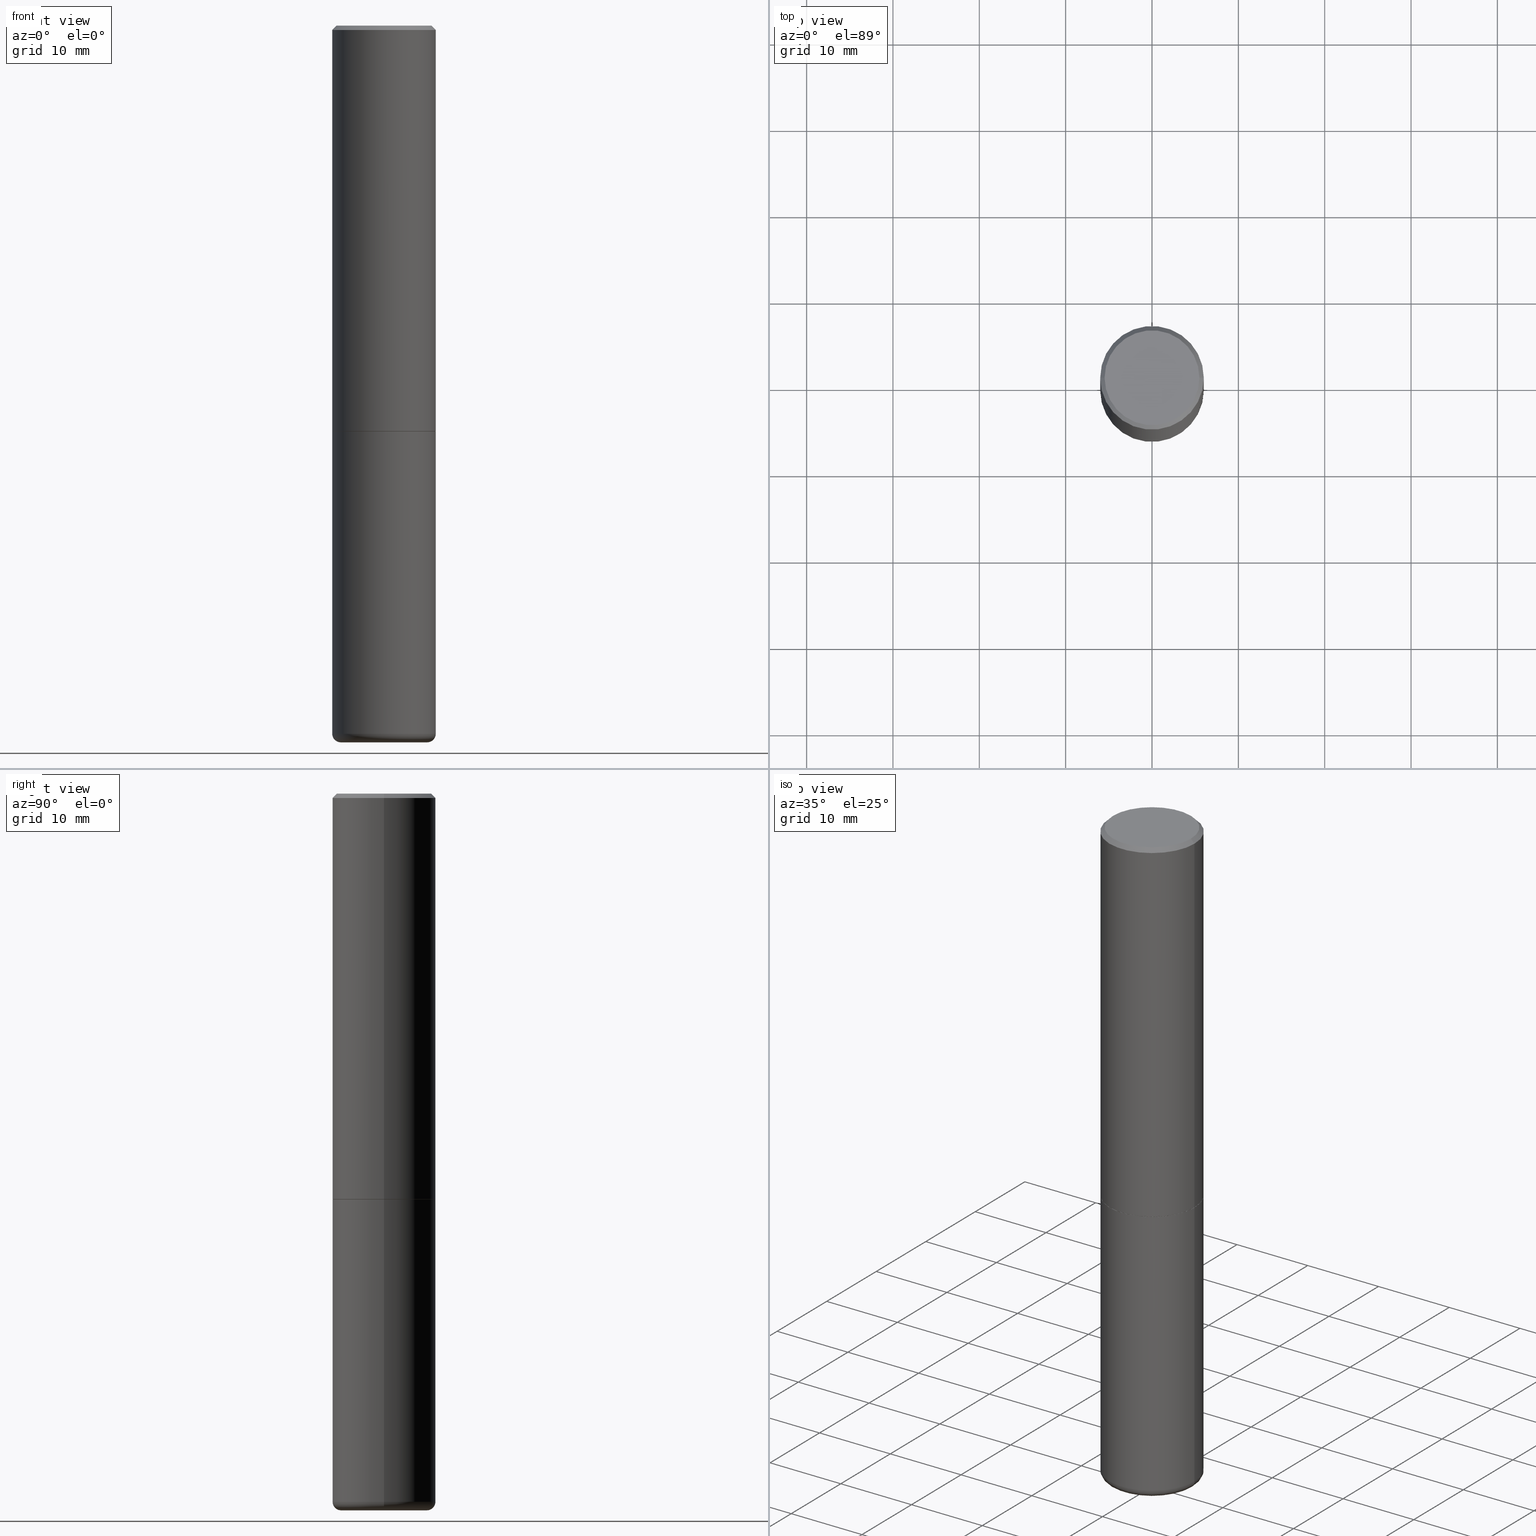
[diagram: canonical four-view strip — front | top / right | iso, engineering-drawing reading convention]
A machine part, canonical four-view strip (front | top / right | iso — engineering-drawing reading convention). The complete STEP part file that produces these views, byte-faithful:
ISO-10303-21;
HEADER;
FILE_DESCRIPTION (( 'STEP AP203' ),
    '1' );
FILE_NAME ('74701.STEP',
    '2024-05-02T19:14:16',
    ( '' ),
    ( '' ),
    'SwSTEP 2.0',
    'SolidWorks 2023',
    '' );
FILE_SCHEMA (( 'CONFIG_CONTROL_DESIGN' ));
ENDSEC;

DATA;
#1 = CONICAL_SURFACE ( 'NONE', #308, 0.2351999999999999924, 0.7853981633975165577 ) ;
#2 = CARTESIAN_POINT ( 'NONE',  ( -3.653479950173268921E-45, 5.216201096331565337E-31, 1.493979371535143917E-16 ) ) ;
#3 = CARTESIAN_POINT ( 'NONE',  ( 4.525095478964977394E-29, -6.460637069395357576E-15, -1.850400000000000267 ) ) ;
#4 = PRODUCT ( '74701', '74701', '', ( #277 ) ) ;
#5 = CC_DESIGN_PERSON_AND_ORGANIZATION_ASSIGNMENT ( #209, #244, ( #4 ) ) ;
#6 = LINE ( 'NONE', #245, #157 ) ;
#7 = LOCAL_TIME ( 15, 14, 16.00000000000000000, #173 ) ;
#8 = ORIENTED_EDGE ( 'NONE', *, *, #330, .T. ) ;
#9 = AXIS2_PLACEMENT_3D ( 'NONE', #143, #119, #203 ) ;
#10 =( CONVERSION_BASED_UNIT ( 'INCH', #16 ) LENGTH_UNIT ( ) NAMED_UNIT ( #196 ) );
#11 = CARTESIAN_POINT ( 'NONE',  ( -0.2361999999999999933, -7.187791195925986796E-15, -1.850400000000000267 ) ) ;
#12 = EDGE_CURVE ( 'NONE', #183, #299, #156, .T. ) ;
#13 = CARTESIAN_POINT ( 'NONE',  ( 0.000000000000000000, 0.000000000000000000, 0.000000000000000000 ) ) ;
#14 = AXIS2_PLACEMENT_3D ( 'NONE', #97, #98, #95 ) ;
#15 = SHAPE_DEFINITION_REPRESENTATION ( #166, #215 ) ;
#16 = LENGTH_MEASURE_WITH_UNIT ( LENGTH_MEASURE( 0.02539999999999999897 ), #147 );
#17 = DIRECTION ( 'NONE',  ( -2.445468806185136597E-29, 3.491481338843145583E-15, 1.000000000000000000 ) ) ;
#18 = EDGE_LOOP ( 'NONE', ( #82, #21 ) ) ;
#19 = APPROVAL_STATUS ( 'not_yet_approved' ) ;
#20 = DIRECTION ( 'NONE',  ( 1.000000000000000000, -6.982962677686271444E-15, 0.000000000000000000 ) ) ;
#21 = ORIENTED_EDGE ( 'NONE', *, *, #177, .F. ) ;
#22 = DIRECTION ( 'NONE',  ( 1.000000000000000000, -6.982962677686266711E-15, 4.876176775795935793E-29 ) ) ;
#23 = ORIENTED_EDGE ( 'NONE', *, *, #86, .T. ) ;
#24 = EDGE_CURVE ( 'NONE', #342, #201, #33, .T. ) ;
#25 = ORIENTED_EDGE ( 'NONE', *, *, #314, .T. ) ;
#26 = VERTEX_POINT ( 'NONE', #384 ) ;
#27 = VECTOR ( 'NONE', #34, 39.37007874015748143 ) ;
#28 = AXIS2_PLACEMENT_3D ( 'NONE', #13, #17, #170 ) ;
#29 = DIRECTION ( 'NONE',  ( 1.000000000000000000, -6.982962677686267499E-15, 4.881916136609867620E-29 ) ) ;
#30 = EDGE_CURVE ( 'NONE', #201, #53, #339, .T. ) ;
#31 = CARTESIAN_POINT ( 'NONE',  ( 7.894706947007477118E-29, -1.127154920618732880E-14, -3.228299999999999947 ) ) ;
#32 = ORIENTED_EDGE ( 'NONE', *, *, #159, .F. ) ;
#33 = CIRCLE ( 'NONE', #101, 0.03940000000000005997 ) ;
#34 = DIRECTION ( 'NONE',  ( 0.7071067811865469066, -7.319954787623254468E-15, -0.7071067811865482389 ) ) ;
#35 = EDGE_CURVE ( 'NONE', #153, #319, #116, .T. ) ;
#36 = ORIENTED_EDGE ( 'NONE', *, *, #104, .T. ) ;
#37 = CYLINDRICAL_SURFACE ( 'NONE', #227, 0.2361999999999999933 ) ;
#38 = VERTEX_POINT ( 'NONE', #416 ) ;
#39 = CIRCLE ( 'NONE', #71, 0.2161999999999997535 ) ;
#40 = ORIENTED_EDGE ( 'NONE', *, *, #136, .T. ) ;
#41 = FACE_OUTER_BOUND ( 'NONE', #51, .T. ) ;
#42 = CC_DESIGN_DATE_AND_TIME_ASSIGNMENT ( #400, #172, ( #395 ) ) ;
#43 = AXIS2_PLACEMENT_3D ( 'NONE', #48, #150, #174 ) ;
#44 = PRODUCT_DEFINITION_FORMATION_WITH_SPECIFIED_SOURCE ( 'ANY', '', #4, .NOT_KNOWN. ) ;
#45 = APPROVAL_DATE_TIME ( #410, #122 ) ;
#46 = DIRECTION ( 'NONE',  ( 2.438088387897960049E-29, -3.491481338843145188E-15, -1.000000000000000000 ) ) ;
#47 = CLOSED_SHELL ( 'NONE', ( #344, #283, #390, #142, #388, #194, #335, #285 ) ) ;
#48 = CARTESIAN_POINT ( 'NONE',  ( 4.522650010158792351E-29, -6.457145588056513780E-15, -1.849400000000000155 ) ) ;
#49 = ORIENTED_EDGE ( 'NONE', *, *, #207, .F. ) ;
#50 = PLANE ( 'NONE',  #322 ) ;
#51 = EDGE_LOOP ( 'NONE', ( #40, #120 ) ) ;
#52 = APPROVAL_ROLE ( '' ) ;
#53 = VERTEX_POINT ( 'NONE', #228 ) ;
#54 = COORDINATED_UNIVERSAL_TIME_OFFSET ( 5, 0, .BEHIND. ) ;
#55 = ORIENTED_EDGE ( 'NONE', *, *, #35, .T. ) ;
#56 = CC_DESIGN_PERSON_AND_ORGANIZATION_ASSIGNMENT ( #402, #141, ( #395 ) ) ;
#57 = CARTESIAN_POINT ( 'NONE',  ( -3.653479950173268921E-45, 5.216201096331565337E-31, 1.493979371535143917E-16 ) ) ;
#58 = APPROVAL_PERSON_ORGANIZATION ( #180, #204, #52 ) ;
#59 = CC_DESIGN_PERSON_AND_ORGANIZATION_ASSIGNMENT ( #313, #121, ( #363 ) ) ;
#60 = CARTESIAN_POINT ( 'NONE',  ( 4.525095478964977394E-29, -6.460637069395357576E-15, -1.850400000000000267 ) ) ;
#61 = ADVANCED_FACE ( 'NONE', ( #225 ), #257, .T. ) ;
#62 = CARTESIAN_POINT ( 'NONE',  ( -0.1968000000000000027, -9.873201102211451027E-15, -3.228299999999999947 ) ) ;
#63 = DIRECTION ( 'NONE',  ( -1.000000000000000000, 7.105427357601014480E-15, 0.000000000000000000 ) ) ;
#64 = EDGE_LOOP ( 'NONE', ( #175, #8, #316, #264 ) ) ;
#65 = CC_DESIGN_SECURITY_CLASSIFICATION ( #363, ( #44 ) ) ;
#66 = EDGE_CURVE ( 'NONE', #319, #183, #160, .T. ) ;
#67 = CARTESIAN_POINT ( 'NONE',  ( -0.2361999999999999378, 1.579546157692632635E-15, -0.02000000000000005246 ) ) ;
#68 = CC_DESIGN_DATE_AND_TIME_ASSIGNMENT ( #144, #307, ( #363 ) ) ;
#69 = CARTESIAN_POINT ( 'NONE',  ( 0.2361999999999999933, -1.292092499065682375E-14, -3.228299999999999947 ) ) ;
#70 = ORIENTED_EDGE ( 'NONE', *, *, #30, .F. ) ;
#71 = AXIS2_PLACEMENT_3D ( 'NONE', #2, #130, #29 ) ;
#72 = CARTESIAN_POINT ( 'NONE',  ( 7.991058417971171713E-29, -1.140911357093774644E-14, -3.267700000000000049 ) ) ;
#73 = PERSON_AND_ORGANIZATION_ROLE ( 'design_supplier' ) ;
#74 = DIRECTION ( 'NONE',  ( 1.000000000000000000, 0.000000000000000000, 0.000000000000000000 ) ) ;
#75 = FACE_OUTER_BOUND ( 'NONE', #18, .T. ) ;
#76 = ADVANCED_FACE ( 'NONE', ( #192 ), #128, .T. ) ;
#77 = APPROVAL_PERSON_ORGANIZATION ( #377, #237, #85 ) ;
#78 = COORDINATED_UNIVERSAL_TIME_OFFSET ( 5, 0, .BEHIND. ) ;
#79 = EDGE_CURVE ( 'NONE', #256, #53, #393, .T. ) ;
#80 = AXIS2_PLACEMENT_3D ( 'NONE', #57, #398, #260 ) ;
#81 = VECTOR ( 'NONE', #334, 39.37007874015748143 ) ;
#82 = ORIENTED_EDGE ( 'NONE', *, *, #131, .F. ) ;
#83 = FACE_OUTER_BOUND ( 'NONE', #221, .T. ) ;
#84 = ORIENTED_EDGE ( 'NONE', *, *, #131, .T. ) ;
#85 = APPROVAL_ROLE ( '' ) ;
#86 = EDGE_CURVE ( 'NONE', #26, #199, #262, .T. ) ;
#87 = ORIENTED_EDGE ( 'NONE', *, *, #35, .F. ) ;
#88 = LOCAL_TIME ( 15, 14, 16.00000000000000000, #54 ) ;
#89 = ORIENTED_EDGE ( 'NONE', *, *, #191, .T. ) ;
#90 = AXIS2_PLACEMENT_3D ( 'NONE', #355, #226, #323 ) ;
#91 = DIRECTION ( 'NONE',  ( -2.445468806185136597E-29, 3.491481338843145583E-15, 1.000000000000000000 ) ) ;
#92 = DIRECTION ( 'NONE',  ( 1.000000000000000000, -6.982962677686264344E-15, 0.000000000000000000 ) ) ;
#93 = CARTESIAN_POINT ( 'NONE',  ( 4.890937612370285420E-31, -6.982962677686308865E-17, -0.02000000000000005246 ) ) ;
#94 = AXIS2_PLACEMENT_3D ( 'NONE', #93, #391, #392 ) ;
#95 = DIRECTION ( 'NONE',  ( 1.000000000000000000, -6.982962677686264344E-15, 0.000000000000000000 ) ) ;
#96 = ORIENTED_EDGE ( 'NONE', *, *, #254, .T. ) ;
#97 = CARTESIAN_POINT ( 'NONE',  ( 4.525095478964977394E-29, -6.460637069395357576E-15, -1.850400000000000267 ) ) ;
#98 = DIRECTION ( 'NONE',  ( -2.445468806185136597E-29, 3.491481338843145583E-15, 1.000000000000000000 ) ) ;
#99 = ORIENTED_EDGE ( 'NONE', *, *, #267, .T. ) ;
#100 = VECTOR ( 'NONE', #229, 39.37007874015748143 ) ;
#101 = AXIS2_PLACEMENT_3D ( 'NONE', #152, #124, #279 ) ;
#102 = UNCERTAINTY_MEASURE_WITH_UNIT (LENGTH_MEASURE( 1.000000000000000082E-05 ), #10, 'distance_accuracy_value', 'NONE');
#103 = ORIENTED_EDGE ( 'NONE', *, *, #397, .T. ) ;
#104 = EDGE_CURVE ( 'NONE', #153, #299, #326, .T. ) ;
#105 = DIRECTION ( 'NONE',  ( 1.000000000000000000, -6.982962677686271444E-15, 0.000000000000000000 ) ) ;
#106 = CC_DESIGN_APPROVAL ( #204, ( #363 ) ) ;
#107 = APPLICATION_CONTEXT ( 'configuration controlled 3d designs of mechanical parts and assemblies' ) ;
#108 = ORIENTED_EDGE ( 'NONE', *, *, #86, .F. ) ;
#109 =( NAMED_UNIT ( * ) SI_UNIT ( $, .STERADIAN. ) SOLID_ANGLE_UNIT ( ) );
#110 = AXIS2_PLACEMENT_3D ( 'NONE', #365, #91, #353 ) ;
#111 = CARTESIAN_POINT ( 'NONE',  ( -0.2351999999999999924, -4.784142100539378999E-15, -1.850400000000000267 ) ) ;
#112 = CARTESIAN_POINT ( 'NONE',  ( 4.890937612370285420E-31, -6.982962677686308865E-17, -0.02000000000000005246 ) ) ;
#113 = CARTESIAN_POINT ( 'NONE',  ( -0.2361999999999999933, 1.678301941865356591E-15, -1.161852468318208757E-29 ) ) ;
#114 = CALENDAR_DATE ( 2024, 2, 5 ) ;
#115 = CARTESIAN_POINT ( 'NONE',  ( 4.525095478964977394E-29, -6.460637069395357576E-15, -1.850400000000000267 ) ) ;
#116 = CIRCLE ( 'NONE', #80, 0.2161999999999997535 ) ;
#117 = DIRECTION ( 'NONE',  ( 1.000000000000000000, -6.982962677686265922E-15, 4.876176775795935793E-29 ) ) ;
#118 = EDGE_LOOP ( 'NONE', ( #89, #55 ) ) ;
#119 = DIRECTION ( 'NONE',  ( 2.438088387897960049E-29, -3.491481338843145188E-15, -1.000000000000000000 ) ) ;
#120 = ORIENTED_EDGE ( 'NONE', *, *, #371, .T. ) ;
#121 = PERSON_AND_ORGANIZATION_ROLE ( 'classification_officer' ) ;
#122 = APPROVAL ( #396, 'UNSPECIFIED' ) ;
#123 = ORIENTED_EDGE ( 'NONE', *, *, #267, .F. ) ;
#124 = DIRECTION ( 'NONE',  ( -6.982962677686266711E-15, -1.000000000000000000, 3.491481338843145583E-15 ) ) ;
#125 = TOROIDAL_SURFACE ( 'NONE', #212, 0.1968000000000000027, 0.03940000000000004610 ) ;
#126 = LINE ( 'NONE', #291, #317 ) ;
#127 = AXIS2_PLACEMENT_3D ( 'NONE', #182, #224, #22 ) ;
#128 = PLANE ( 'NONE',  #349 ) ;
#129 = DIRECTION ( 'NONE',  ( -2.445468806185136597E-29, 3.491481338843145583E-15, 1.000000000000000000 ) ) ;
#130 = DIRECTION ( 'NONE',  ( -2.445468806185136597E-29, 3.491481338843145583E-15, 1.000000000000000000 ) ) ;
#131 = EDGE_CURVE ( 'NONE', #26, #302, #269, .T. ) ;
#132 = DIRECTION ( 'NONE',  ( -2.445468806185136597E-29, 3.491481338843145583E-15, 1.000000000000000000 ) ) ;
#133 = CARTESIAN_POINT ( 'NONE',  ( 7.894706947007477118E-29, -1.127154920618732880E-14, -3.228299999999999947 ) ) ;
#134 = TOROIDAL_SURFACE ( 'NONE', #373, 0.1968000000000000027, 0.03940000000000004610 ) ;
#135 = VECTOR ( 'NONE', #178, 39.37007874015748143 ) ;
#136 = EDGE_CURVE ( 'NONE', #266, #312, #382, .T. ) ;
#137 = PERSON_AND_ORGANIZATION ( #169, #294 ) ;
#138 = CIRCLE ( 'NONE', #369, 0.2361999999999999378 ) ;
#139 = CC_DESIGN_PERSON_AND_ORGANIZATION_ASSIGNMENT ( #184, #176, ( #44 ) ) ;
#140 = CARTESIAN_POINT ( 'NONE',  ( 4.522650010158792351E-29, -6.457145588056513780E-15, -1.849400000000000155 ) ) ;
#141 = PERSON_AND_ORGANIZATION_ROLE ( 'creator' ) ;
#142 = ADVANCED_FACE ( 'NONE', ( #293 ), #261, .T. ) ;
#143 = CARTESIAN_POINT ( 'NONE',  ( 4.525095478964977394E-29, -6.460637069395357576E-15, -1.850400000000000267 ) ) ;
#144 = DATE_AND_TIME ( #243, #7 ) ;
#145 = CARTESIAN_POINT ( 'NONE',  ( -0.2362000000000000766, 1.678301941865357183E-15, -1.161852468318209177E-29 ) ) ;
#146 = PERSON_AND_ORGANIZATION ( #169, #294 ) ;
#147 =( LENGTH_UNIT ( ) NAMED_UNIT ( * ) SI_UNIT ( $, .METRE. ) );
#148 = DIRECTION ( 'NONE',  ( -2.445468806185136877E-29, 3.491481338843145188E-15, 1.000000000000000000 ) ) ;
#149 = ORIENTED_EDGE ( 'NONE', *, *, #12, .T. ) ;
#150 = DIRECTION ( 'NONE',  ( -2.445468806185136597E-29, 3.491481338843145583E-15, 1.000000000000000000 ) ) ;
#151 = ORIENTED_EDGE ( 'NONE', *, *, #383, .F. ) ;
#152 = CARTESIAN_POINT ( 'NONE',  ( 0.1968000000000000027, -1.264579626115598374E-14, -3.228299999999999947 ) ) ;
#153 = VERTEX_POINT ( 'NONE', #328 ) ;
#154 = ADVANCED_FACE ( 'NONE', ( #195 ), #134, .T. ) ;
#155 = CARTESIAN_POINT ( 'NONE',  ( 4.890937612370285420E-31, -6.982962677686308865E-17, -0.02000000000000005246 ) ) ;
#156 = CIRCLE ( 'NONE', #181, 0.2361999999999999378 ) ;
#157 = VECTOR ( 'NONE', #399, 39.37007874015748143 ) ;
#158 = DIRECTION ( 'NONE',  ( 1.000000000000000000, -6.982962677686264344E-15, 0.000000000000000000 ) ) ;
#159 = EDGE_CURVE ( 'NONE', #53, #201, #356, .T. ) ;
#160 = LINE ( 'NONE', #357, #100 ) ;
#161 = CARTESIAN_POINT ( 'NONE',  ( 0.2351999999999999924, -8.103029891187166509E-15, -1.850400000000000267 ) ) ;
#162 = AXIS2_PLACEMENT_3D ( 'NONE', #417, #129, #389 ) ;
#163 = EDGE_LOOP ( 'NONE', ( #84, #217, #214, #108 ) ) ;
#164 = DIRECTION ( 'NONE',  ( -2.445468806185136597E-29, 3.491481338843145583E-15, 1.000000000000000000 ) ) ;
#165 = FACE_OUTER_BOUND ( 'NONE', #282, .T. ) ;
#166 = PRODUCT_DEFINITION_SHAPE ( 'NONE', 'NONE',  #395 ) ;
#167 = ORIENTED_EDGE ( 'NONE', *, *, #366, .T. ) ;
#168 = DIRECTION ( 'NONE',  ( -2.445468806185136597E-29, 3.491481338843145583E-15, 1.000000000000000000 ) ) ;
#169 = PERSON ( 'UNSPECIFIED', 'UNSPECIFIED', 'UNSPECIFIED', ('UNSPECIFIED'), ('UNSPECIFIED'), ('UNSPECIFIED') ) ;
#170 = DIRECTION ( 'NONE',  ( 1.000000000000000000, -6.982962677686266711E-15, 4.876176775795935793E-29 ) ) ;
#171 = CARTESIAN_POINT ( 'NONE',  ( -0.1968000000000000027, -9.802006365641922115E-15, -3.267700000000000049 ) ) ;
#172 = DATE_TIME_ROLE ( 'creation_date' ) ;
#173 = COORDINATED_UNIVERSAL_TIME_OFFSET ( 5, 0, .BEHIND. ) ;
#174 = DIRECTION ( 'NONE',  ( 1.000000000000000000, -6.982962677686266711E-15, 0.000000000000000000 ) ) ;
#175 = ORIENTED_EDGE ( 'NONE', *, *, #325, .T. ) ;
#176 = PERSON_AND_ORGANIZATION_ROLE ( 'creator' ) ;
#177 = EDGE_CURVE ( 'NONE', #302, #26, #407, .T. ) ;
#178 = DIRECTION ( 'NONE',  ( -2.445468806185136877E-29, 3.491481338843145188E-15, 1.000000000000000000 ) ) ;
#179 = EDGE_LOOP ( 'NONE', ( #87, #36, #331, #188 ) ) ;
#180 = PERSON_AND_ORGANIZATION ( #169, #294 ) ;
#181 = AXIS2_PLACEMENT_3D ( 'NONE', #155, #235, #412 ) ;
#182 = CARTESIAN_POINT ( 'NONE',  ( 0.000000000000000000, 0.000000000000000000, 0.000000000000000000 ) ) ;
#183 = VERTEX_POINT ( 'NONE', #67 ) ;
#184 = PERSON_AND_ORGANIZATION ( #169, #294 ) ;
#185 = EDGE_LOOP ( 'NONE', ( #347, #255, #99, #320 ) ) ;
#186 = ADVANCED_FACE ( 'NONE', ( #360 ), #37, .T. ) ;
#187 =( GEOMETRIC_REPRESENTATION_CONTEXT ( 3 ) GLOBAL_UNCERTAINTY_ASSIGNED_CONTEXT ( ( #102 ) ) GLOBAL_UNIT_ASSIGNED_CONTEXT ( ( #10, #370, #109 ) ) REPRESENTATION_CONTEXT ( 'NONE', 'WORKASPACE' ) );
#188 = ORIENTED_EDGE ( 'NONE', *, *, #66, .F. ) ;
#189 = DIRECTION ( 'NONE',  ( -1.000000000000000000, 6.982962677686265922E-15, -4.876176775795935793E-29 ) ) ;
#190 = AXIS2_PLACEMENT_3D ( 'NONE', #115, #315, #117 ) ;
#191 = EDGE_CURVE ( 'NONE', #319, #153, #39, .T. ) ;
#192 = FACE_OUTER_BOUND ( 'NONE', #220, .T. ) ;
#193 = CIRCLE ( 'NONE', #310, 0.1968000000000000027 ) ;
#194 = ADVANCED_FACE ( 'NONE', ( #298 ), #1, .T. ) ;
#195 = FACE_OUTER_BOUND ( 'NONE', #406, .T. ) ;
#196 = DIMENSIONAL_EXPONENTS ( 1.000000000000000000, 0.000000000000000000, 0.000000000000000000, 0.000000000000000000, 0.000000000000000000, 0.000000000000000000, 0.000000000000000000 ) ;
#197 = DIRECTION ( 'NONE',  ( 7.105427357601001859E-15, 1.000000000000000000, -3.491481338843145583E-15 ) ) ;
#198 = CARTESIAN_POINT ( 'NONE',  ( 7.991058417971171713E-29, -1.140911357093774644E-14, -3.267700000000000049 ) ) ;
#199 = VERTEX_POINT ( 'NONE', #265 ) ;
#200 = APPLICATION_PROTOCOL_DEFINITION ( 'international standard', 'config_control_design', 1994, #350 ) ;
#201 = VERTEX_POINT ( 'NONE', #69 ) ;
#202 = CARTESIAN_POINT ( 'NONE',  ( 0.000000000000000000, 0.000000000000000000, 0.000000000000000000 ) ) ;
#203 = DIRECTION ( 'NONE',  ( -1.000000000000000000, 6.982962677686265922E-15, -4.876176775795935793E-29 ) ) ;
#204 = APPROVAL ( #19, 'UNSPECIFIED' ) ;
#205 = DIRECTION ( 'NONE',  ( 1.000000000000000000, -6.982962677686270655E-15, 4.883557194083114583E-29 ) ) ;
#206 = LINE ( 'NONE', #113, #135 ) ;
#207 = EDGE_CURVE ( 'NONE', #302, #38, #126, .T. ) ;
#208 = DATE_AND_TIME ( #368, #295 ) ;
#209 = PERSON_AND_ORGANIZATION ( #169, #294 ) ;
#210 = CARTESIAN_POINT ( 'NONE',  ( 4.525095478964977394E-29, -6.460637069395357576E-15, -1.850400000000000267 ) ) ;
#211 = AXIS2_PLACEMENT_3D ( 'NONE', #62, #197, #63 ) ;
#212 = AXIS2_PLACEMENT_3D ( 'NONE', #133, #394, #205 ) ;
#213 = CARTESIAN_POINT ( 'NONE',  ( 4.525095478964977394E-29, -6.460637069395357576E-15, -1.850400000000000267 ) ) ;
#214 = ORIENTED_EDGE ( 'NONE', *, *, #325, .F. ) ;
#215 = ADVANCED_BREP_SHAPE_REPRESENTATION ( '74701', ( #287, #418, #263 ), #187 ) ;
#216 = CYLINDRICAL_SURFACE ( 'NONE', #127, 0.2362000000000000766 ) ;
#217 = ORIENTED_EDGE ( 'NONE', *, *, #207, .T. ) ;
#218 = ORIENTED_EDGE ( 'NONE', *, *, #79, .T. ) ;
#219 = CALENDAR_DATE ( 2024, 2, 5 ) ;
#220 = EDGE_LOOP ( 'NONE', ( #364, #381 ) ) ;
#221 = EDGE_LOOP ( 'NONE', ( #329, #376, #96, #351 ) ) ;
#222 = ADVANCED_FACE ( 'NONE', ( #165 ), #125, .T. ) ;
#223 = CIRCLE ( 'NONE', #43, 0.2362000000000002153 ) ;
#224 = DIRECTION ( 'NONE',  ( -2.445468806185136597E-29, 3.491481338843145583E-15, 1.000000000000000000 ) ) ;
#225 = FACE_OUTER_BOUND ( 'NONE', #411, .T. ) ;
#226 = DIRECTION ( 'NONE',  ( -2.445468806185136597E-29, 3.491481338843145583E-15, 1.000000000000000000 ) ) ;
#227 = AXIS2_PLACEMENT_3D ( 'NONE', #413, #164, #230 ) ;
#228 = CARTESIAN_POINT ( 'NONE',  ( -0.2361999999999999933, -9.593247264321970832E-15, -3.228299999999999947 ) ) ;
#229 = DIRECTION ( 'NONE',  ( -0.7071067811865469066, 2.468850131082249961E-15, -0.7071067811865482389 ) ) ;
#230 = DIRECTION ( 'NONE',  ( 1.000000000000000000, -6.982962677686266711E-15, 4.876176775795936353E-29 ) ) ;
#231 = CIRCLE ( 'NONE', #292, 0.1968000000000000027 ) ;
#232 = ORIENTED_EDGE ( 'NONE', *, *, #104, .F. ) ;
#233 = CARTESIAN_POINT ( 'NONE',  ( 4.890937612370285420E-31, -6.982962677686308865E-17, -0.02000000000000005246 ) ) ;
#234 = CC_DESIGN_APPROVAL ( #237, ( #44 ) ) ;
#235 = DIRECTION ( 'NONE',  ( -2.445468806185136597E-29, 3.491481338843145583E-15, 1.000000000000000000 ) ) ;
#236 = AXIS2_PLACEMENT_3D ( 'NONE', #60, #386, #289 ) ;
#237 = APPROVAL ( #253, 'UNSPECIFIED' ) ;
#238 = FACE_OUTER_BOUND ( 'NONE', #163, .T. ) ;
#239 = SECURITY_CLASSIFICATION_LEVEL ( 'unclassified' ) ;
#240 = DIRECTION ( 'NONE',  ( -1.000000000000000000, 6.982962677686265922E-15, -4.876176775795935793E-29 ) ) ;
#241 = APPROVAL_DATE_TIME ( #273, #237 ) ;
#242 = CARTESIAN_POINT ( 'NONE',  ( 0.1968000000000000027, -1.278336062590640454E-14, -3.267700000000000049 ) ) ;
#243 = CALENDAR_DATE ( 2024, 2, 5 ) ;
#244 = PERSON_AND_ORGANIZATION_ROLE ( 'design_owner' ) ;
#245 = CARTESIAN_POINT ( 'NONE',  ( 0.2362000000000000766, -1.649375784469496722E-15, 1.151752954443000368E-29 ) ) ;
#246 = VECTOR ( 'NONE', #385, 39.37007874015748143 ) ;
#247 = VECTOR ( 'NONE', #148, 39.37007874015748143 ) ;
#248 = DIRECTION ( 'NONE',  ( -2.445468806185136597E-29, 3.491481338843145583E-15, 1.000000000000000000 ) ) ;
#249 = EDGE_LOOP ( 'NONE', ( #49, #284, #23, #151 ) ) ;
#250 = AXIS2_PLACEMENT_3D ( 'NONE', #213, #375, #341 ) ;
#251 = PLANE ( 'NONE',  #190 ) ;
#252 = ORIENTED_EDGE ( 'NONE', *, *, #191, .F. ) ;
#253 = APPROVAL_STATUS ( 'not_yet_approved' ) ;
#254 = EDGE_CURVE ( 'NONE', #199, #299, #6, .T. ) ;
#255 = ORIENTED_EDGE ( 'NONE', *, *, #159, .T. ) ;
#256 = VERTEX_POINT ( 'NONE', #171 ) ;
#257 = CYLINDRICAL_SURFACE ( 'NONE', #90, 0.2361999999999999933 ) ;
#258 = CARTESIAN_POINT ( 'NONE',  ( 4.525095478964977394E-29, -6.460637069395357576E-15, -1.850400000000000267 ) ) ;
#259 = LOCAL_TIME ( 15, 14, 16.00000000000000000, #348 ) ;
#260 = DIRECTION ( 'NONE',  ( 1.000000000000000000, -6.982962677686267499E-15, 4.881916136609867620E-29 ) ) ;
#261 = CONICAL_SURFACE ( 'NONE', #94, 0.2361999999999999378, 0.7853981633974473908 ) ;
#262 = LINE ( 'NONE', #161, #246 ) ;
#263 = AXIS2_PLACEMENT_3D ( 'NONE', #202, #340, #74 ) ;
#264 = ORIENTED_EDGE ( 'NONE', *, *, #254, .F. ) ;
#265 = CARTESIAN_POINT ( 'NONE',  ( 0.2362000000000002153, -8.106521372526011094E-15, -1.849400000000000155 ) ) ;
#266 = VERTEX_POINT ( 'NONE', #306 ) ;
#267 = EDGE_CURVE ( 'NONE', #201, #266, #367, .T. ) ;
#268 = DIRECTION ( 'NONE',  ( -0.7071067811865957564, 7.493145998870527710E-15, 0.7071067811864992780 ) ) ;
#269 = CIRCLE ( 'NONE', #321, 0.2351999999999999924 ) ;
#270 = CIRCLE ( 'NONE', #374, 0.2362000000000002153 ) ;
#271 = CARTESIAN_POINT ( 'NONE',  ( 7.991058417971171713E-29, -1.140911357093774644E-14, -3.267700000000000049 ) ) ;
#272 = DIRECTION ( 'NONE',  ( -2.445468806185136597E-29, 3.491481338843145583E-15, 1.000000000000000000 ) ) ;
#273 = DATE_AND_TIME ( #219, #88 ) ;
#274 = DIRECTION ( 'NONE',  ( 1.000000000000000000, -6.982962677686266711E-15, 0.000000000000000000 ) ) ;
#275 = APPROVAL_ROLE ( '' ) ;
#276 = CARTESIAN_POINT ( 'NONE',  ( -0.2161999999999997535, 1.544631344304201183E-15, 1.493979371535037174E-16 ) ) ;
#277 = MECHANICAL_CONTEXT ( 'NONE', #107, 'mechanical' ) ;
#278 = PLANE ( 'NONE',  #9 ) ;
#279 = DIRECTION ( 'NONE',  ( 1.000000000000000000, -6.982962677686267499E-15, 0.000000000000000000 ) ) ;
#280 = COORDINATED_UNIVERSAL_TIME_OFFSET ( 5, 0, .BEHIND. ) ;
#281 = CYLINDRICAL_SURFACE ( 'NONE', #28, 0.2362000000000000766 ) ;
#282 = EDGE_LOOP ( 'NONE', ( #167, #218, #70, #318 ) ) ;
#283 = ADVANCED_FACE ( 'NONE', ( #332 ), #281, .T. ) ;
#284 = ORIENTED_EDGE ( 'NONE', *, *, #177, .T. ) ;
#285 = ADVANCED_FACE ( 'NONE', ( #311 ), #50, .F. ) ;
#286 = ORIENTED_EDGE ( 'NONE', *, *, #136, .F. ) ;
#287 = MANIFOLD_SOLID_BREP ( 'Body-Move/Copy2[1]', #301 ) ;
#288 = LOCAL_TIME ( 15, 14, 16.00000000000000000, #78 ) ;
#289 = DIRECTION ( 'NONE',  ( 1.000000000000000000, -6.982962677686269077E-15, 0.000000000000000000 ) ) ;
#290 = ADVANCED_FACE ( 'NONE', ( #41 ), #278, .F. ) ;
#291 = CARTESIAN_POINT ( 'NONE',  ( -0.2351999999999999924, -4.789440554887602190E-15, -1.850400000000000267 ) ) ;
#292 = AXIS2_PLACEMENT_3D ( 'NONE', #271, #304, #105 ) ;
#293 = FACE_OUTER_BOUND ( 'NONE', #297, .T. ) ;
#294 = ORGANIZATION ( 'UNSPECIFIED', 'UNSPECIFIED', '' ) ;
#295 = LOCAL_TIME ( 15, 14, 16.00000000000000000, #280 ) ;
#296 = DIRECTION ( 'NONE',  ( 1.000000000000000000, -6.982962677686270655E-15, 4.883557194083114583E-29 ) ) ;
#297 = EDGE_LOOP ( 'NONE', ( #232, #252, #409, #149 ) ) ;
#298 = FACE_OUTER_BOUND ( 'NONE', #249, .T. ) ;
#299 = VERTEX_POINT ( 'NONE', #408 ) ;
#300 = APPROVAL_PERSON_ORGANIZATION ( #137, #122, #275 ) ;
#301 = CLOSED_SHELL ( 'NONE', ( #61, #222, #290, #186, #154, #76 ) ) ;
#302 = VERTEX_POINT ( 'NONE', #111 ) ;
#303 = AXIS2_PLACEMENT_3D ( 'NONE', #233, #403, #336 ) ;
#304 = DIRECTION ( 'NONE',  ( -2.445468806185136597E-29, 3.491481338843145583E-15, 1.000000000000000000 ) ) ;
#305 = CARTESIAN_POINT ( 'NONE',  ( 1.509716530915769140E-15, 0.2161999999999997535, -6.801592968811301598E-16 ) ) ;
#306 = CARTESIAN_POINT ( 'NONE',  ( 0.2361999999999999933, -8.110012853864854101E-15, -1.850400000000000267 ) ) ;
#307 = DATE_TIME_ROLE ( 'classification_date' ) ;
#308 = AXIS2_PLACEMENT_3D ( 'NONE', #3, #132, #158 ) ;
#309 = DIRECTION ( 'NONE',  ( 1.000000000000000000, -6.982962677686266711E-15, 0.000000000000000000 ) ) ;
#310 = AXIS2_PLACEMENT_3D ( 'NONE', #72, #372, #20 ) ;
#311 = FACE_OUTER_BOUND ( 'NONE', #118, .T. ) ;
#312 = VERTEX_POINT ( 'NONE', #11 ) ;
#313 = PERSON_AND_ORGANIZATION ( #169, #294 ) ;
#314 = EDGE_CURVE ( 'NONE', #53, #312, #206, .T. ) ;
#315 = DIRECTION ( 'NONE',  ( -2.438088387897960049E-29, 3.491481338843145188E-15, 1.000000000000000000 ) ) ;
#316 = ORIENTED_EDGE ( 'NONE', *, *, #405, .F. ) ;
#317 = VECTOR ( 'NONE', #268, 39.37007874015748143 ) ;
#318 = ORIENTED_EDGE ( 'NONE', *, *, #24, .F. ) ;
#319 = VERTEX_POINT ( 'NONE', #276 ) ;
#320 = ORIENTED_EDGE ( 'NONE', *, *, #371, .F. ) ;
#321 = AXIS2_PLACEMENT_3D ( 'NONE', #258, #359, #92 ) ;
#322 = AXIS2_PLACEMENT_3D ( 'NONE', #305, #46, #240 ) ;
#323 = DIRECTION ( 'NONE',  ( 1.000000000000000000, -6.982962677686266711E-15, 4.876176775795936353E-29 ) ) ;
#324 = CARTESIAN_POINT ( 'NONE',  ( 0.2361999999999999378, -1.690279253850498377E-15, -0.02000000000000005246 ) ) ;
#325 = EDGE_CURVE ( 'NONE', #199, #38, #270, .T. ) ;
#326 = LINE ( 'NONE', #324, #27 ) ;
#327 = DIRECTION ( 'NONE',  ( -2.445468806185136597E-29, 3.491481338843145583E-15, 1.000000000000000000 ) ) ;
#328 = CARTESIAN_POINT ( 'NONE',  ( 0.2161999999999997535, -1.586759460484350805E-15, 1.493979371535252139E-16 ) ) ;
#329 = ORIENTED_EDGE ( 'NONE', *, *, #330, .F. ) ;
#330 = EDGE_CURVE ( 'NONE', #38, #183, #404, .T. ) ;
#331 = ORIENTED_EDGE ( 'NONE', *, *, #405, .T. ) ;
#332 = FACE_OUTER_BOUND ( 'NONE', #64, .T. ) ;
#333 = APPLICATION_PROTOCOL_DEFINITION ( 'international standard', 'config_control_design', 1994, #107 ) ;
#334 = DIRECTION ( 'NONE',  ( -2.445468806185136877E-29, 3.491481338843145188E-15, 1.000000000000000000 ) ) ;
#335 = ADVANCED_FACE ( 'NONE', ( #75 ), #251, .F. ) ;
#336 = DIRECTION ( 'NONE',  ( -1.000000000000000000, 6.982962677686266711E-15, 0.000000000000000000 ) ) ;
#337 = DESIGN_CONTEXT ( 'detailed design', #350, 'design' ) ;
#338 = DIRECTION ( 'NONE',  ( 1.000000000000000000, -6.982962677686264344E-15, 0.000000000000000000 ) ) ;
#339 = CIRCLE ( 'NONE', #110, 0.2361999999999999655 ) ;
#340 = DIRECTION ( 'NONE',  ( 0.000000000000000000, 0.000000000000000000, 1.000000000000000000 ) ) ;
#341 = DIRECTION ( 'NONE',  ( 1.000000000000000000, -6.982962677686269077E-15, 0.000000000000000000 ) ) ;
#342 = VERTEX_POINT ( 'NONE', #242 ) ;
#343 = CALENDAR_DATE ( 2024, 2, 5 ) ;
#344 = ADVANCED_FACE ( 'NONE', ( #238 ), #414, .T. ) ;
#345 = CARTESIAN_POINT ( 'NONE',  ( 0.2361999999999999933, -1.649375784469496131E-15, 1.151752954443000088E-29 ) ) ;
#346 = ORIENTED_EDGE ( 'NONE', *, *, #79, .F. ) ;
#347 = ORIENTED_EDGE ( 'NONE', *, *, #314, .F. ) ;
#348 = COORDINATED_UNIVERSAL_TIME_OFFSET ( 5, 0, .BEHIND. ) ;
#349 = AXIS2_PLACEMENT_3D ( 'NONE', #198, #358, #189 ) ;
#350 = APPLICATION_CONTEXT ( 'configuration controlled 3d designs of mechanical parts and assemblies' ) ;
#351 = ORIENTED_EDGE ( 'NONE', *, *, #12, .F. ) ;
#352 = PRODUCT_RELATED_PRODUCT_CATEGORY ( 'detail', '', ( #4 ) ) ;
#353 = DIRECTION ( 'NONE',  ( 1.000000000000000000, -6.982962677686265922E-15, 0.000000000000000000 ) ) ;
#354 = CC_DESIGN_PERSON_AND_ORGANIZATION_ASSIGNMENT ( #146, #73, ( #44 ) ) ;
#355 = CARTESIAN_POINT ( 'NONE',  ( 0.000000000000000000, 0.000000000000000000, 0.000000000000000000 ) ) ;
#356 = CIRCLE ( 'NONE', #162, 0.2361999999999999655 ) ;
#357 = CARTESIAN_POINT ( 'NONE',  ( -0.2361999999999999378, 1.579546157692632635E-15, -0.02000000000000005246 ) ) ;
#358 = DIRECTION ( 'NONE',  ( 2.438088387897960049E-29, -3.491481338843145188E-15, -1.000000000000000000 ) ) ;
#359 = DIRECTION ( 'NONE',  ( -2.445468806185136597E-29, 3.491481338843145583E-15, 1.000000000000000000 ) ) ;
#360 = FACE_OUTER_BOUND ( 'NONE', #185, .T. ) ;
#361 = ORIENTED_EDGE ( 'NONE', *, *, #30, .T. ) ;
#362 = CONICAL_SURFACE ( 'NONE', #303, 0.2361999999999999378, 0.7853981633974473908 ) ;
#363 = SECURITY_CLASSIFICATION ( '', '', #239 ) ;
#364 = ORIENTED_EDGE ( 'NONE', *, *, #366, .F. ) ;
#365 = CARTESIAN_POINT ( 'NONE',  ( 7.894706947007477118E-29, -1.127154920618732880E-14, -3.228299999999999947 ) ) ;
#366 = EDGE_CURVE ( 'NONE', #342, #256, #193, .T. ) ;
#367 = LINE ( 'NONE', #345, #81 ) ;
#368 = CALENDAR_DATE ( 2024, 2, 5 ) ;
#369 = AXIS2_PLACEMENT_3D ( 'NONE', #112, #168, #309 ) ;
#370 =( NAMED_UNIT ( * ) PLANE_ANGLE_UNIT ( ) SI_UNIT ( $, .RADIAN. ) );
#371 = EDGE_CURVE ( 'NONE', #312, #266, #378, .T. ) ;
#372 = DIRECTION ( 'NONE',  ( -2.445468806185136597E-29, 3.491481338843145583E-15, 1.000000000000000000 ) ) ;
#373 = AXIS2_PLACEMENT_3D ( 'NONE', #31, #327, #296 ) ;
#374 = AXIS2_PLACEMENT_3D ( 'NONE', #140, #272, #274 ) ;
#375 = DIRECTION ( 'NONE',  ( -2.445468806185136597E-29, 3.491481338843145583E-15, 1.000000000000000000 ) ) ;
#376 = ORIENTED_EDGE ( 'NONE', *, *, #383, .T. ) ;
#377 = PERSON_AND_ORGANIZATION ( #169, #294 ) ;
#378 = CIRCLE ( 'NONE', #250, 0.2361999999999999933 ) ;
#379 = ORIENTED_EDGE ( 'NONE', *, *, #24, .T. ) ;
#380 = APPROVAL_DATE_TIME ( #208, #204 ) ;
#381 = ORIENTED_EDGE ( 'NONE', *, *, #397, .F. ) ;
#382 = CIRCLE ( 'NONE', #236, 0.2361999999999999933 ) ;
#383 = EDGE_CURVE ( 'NONE', #38, #199, #223, .T. ) ;
#384 = CARTESIAN_POINT ( 'NONE',  ( 0.2351999999999999924, -8.103029891187166509E-15, -1.850400000000000267 ) ) ;
#385 = DIRECTION ( 'NONE',  ( 0.7071067811865957564, -2.468850131082761932E-15, 0.7071067811864992780 ) ) ;
#386 = DIRECTION ( 'NONE',  ( -2.445468806185136597E-29, 3.491481338843145583E-15, 1.000000000000000000 ) ) ;
#387 = CC_DESIGN_APPROVAL ( #122, ( #395 ) ) ;
#388 = ADVANCED_FACE ( 'NONE', ( #83 ), #216, .T. ) ;
#389 = DIRECTION ( 'NONE',  ( 1.000000000000000000, -6.982962677686265922E-15, 0.000000000000000000 ) ) ;
#390 = ADVANCED_FACE ( 'NONE', ( #415 ), #362, .T. ) ;
#391 = DIRECTION ( 'NONE',  ( 2.445468806185136597E-29, -3.491481338843145583E-15, -1.000000000000000000 ) ) ;
#392 = DIRECTION ( 'NONE',  ( -1.000000000000000000, 6.982962677686266711E-15, 0.000000000000000000 ) ) ;
#393 = CIRCLE ( 'NONE', #211, 0.03940000000000005997 ) ;
#394 = DIRECTION ( 'NONE',  ( -2.445468806185136597E-29, 3.491481338843145583E-15, 1.000000000000000000 ) ) ;
#395 = PRODUCT_DEFINITION ( 'UNKNOWN', '', #44, #337 ) ;
#396 = APPROVAL_STATUS ( 'not_yet_approved' ) ;
#397 = EDGE_CURVE ( 'NONE', #256, #342, #231, .T. ) ;
#398 = DIRECTION ( 'NONE',  ( -2.445468806185136597E-29, 3.491481338843145583E-15, 1.000000000000000000 ) ) ;
#399 = DIRECTION ( 'NONE',  ( -2.445468806185136877E-29, 3.491481338843145188E-15, 1.000000000000000000 ) ) ;
#400 = DATE_AND_TIME ( #114, #288 ) ;
#401 = AXIS2_PLACEMENT_3D ( 'NONE', #210, #248, #338 ) ;
#402 = PERSON_AND_ORGANIZATION ( #169, #294 ) ;
#403 = DIRECTION ( 'NONE',  ( 2.445468806185136597E-29, -3.491481338843145583E-15, -1.000000000000000000 ) ) ;
#404 = LINE ( 'NONE', #145, #247 ) ;
#405 = EDGE_CURVE ( 'NONE', #299, #183, #138, .T. ) ;
#406 = EDGE_LOOP ( 'NONE', ( #346, #103, #379, #32 ) ) ;
#407 = CIRCLE ( 'NONE', #14, 0.2351999999999999924 ) ;
#408 = CARTESIAN_POINT ( 'NONE',  ( 0.2361999999999999378, -1.690279253850498377E-15, -0.02000000000000005246 ) ) ;
#409 = ORIENTED_EDGE ( 'NONE', *, *, #66, .T. ) ;
#410 = DATE_AND_TIME ( #343, #259 ) ;
#411 = EDGE_LOOP ( 'NONE', ( #361, #25, #286, #123 ) ) ;
#412 = DIRECTION ( 'NONE',  ( 1.000000000000000000, -6.982962677686266711E-15, 0.000000000000000000 ) ) ;
#413 = CARTESIAN_POINT ( 'NONE',  ( 0.000000000000000000, 0.000000000000000000, 0.000000000000000000 ) ) ;
#414 = CONICAL_SURFACE ( 'NONE', #401, 0.2351999999999999924, 0.7853981633975165577 ) ;
#415 = FACE_OUTER_BOUND ( 'NONE', #179, .T. ) ;
#416 = CARTESIAN_POINT ( 'NONE',  ( -0.2362000000000002431, -1.585185665551328595E-15, -1.849400000000000155 ) ) ;
#417 = CARTESIAN_POINT ( 'NONE',  ( 7.894706947007477118E-29, -1.127154920618732880E-14, -3.228299999999999947 ) ) ;
#418 = MANIFOLD_SOLID_BREP ( 'Body-Move/Copy2[2]', #47 ) ;
ENDSEC;
END-ISO-10303-21;
